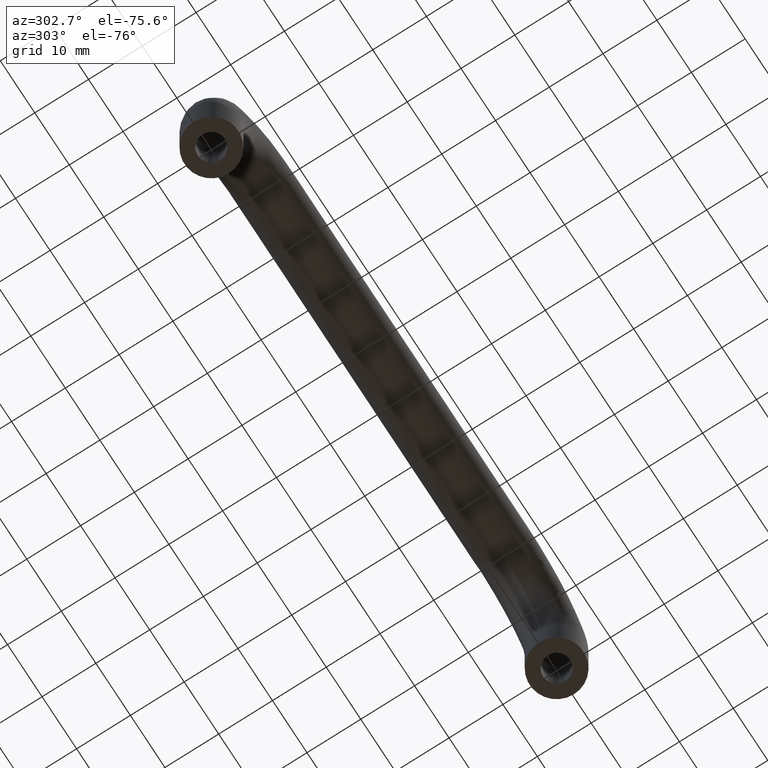
[diagram: clean part render]
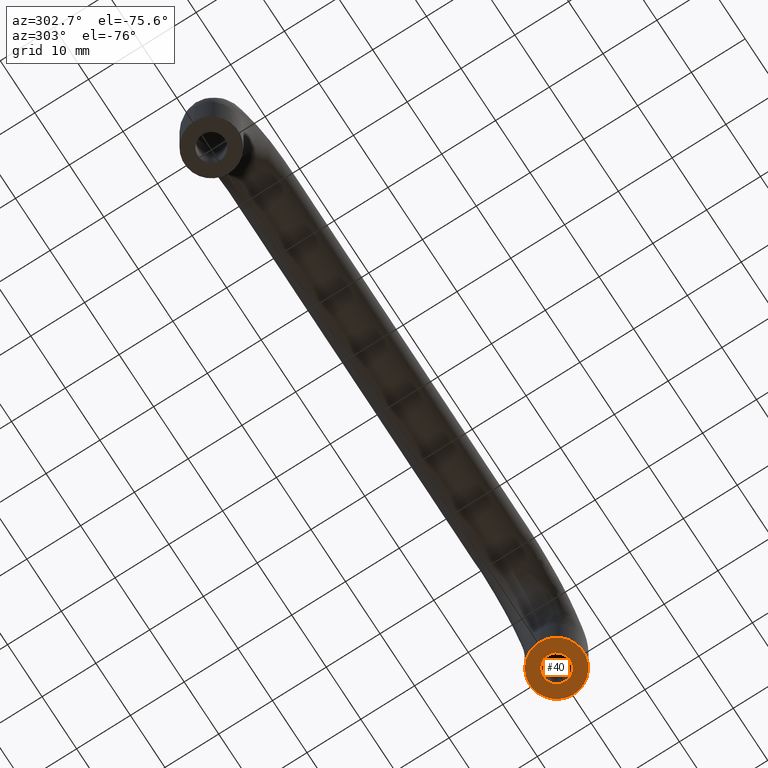
[diagram: same view with one face highlighted and labeled with its STEP entity id]
A machine part, auxiliary view. The second image highlights one B-rep face of the part: STEP entity #40.
In plain terms, the highlighted planar face has unit normal (0, 0, 1).
Its self-contained STEP definition (entity closure, byte-faithful):
#40=ADVANCED_FACE('',(#59,#60),#58,.F.);
#58=PLANE('',#243);
#59=FACE_OUTER_BOUND('',#244,.T.);
#60=FACE_BOUND('',#245,.T.);
#240=CARTESIAN_POINT('',(4.35000000000E+01,-1.03923048455E+01,-2.00000000000E+01));
#241=DIRECTION('',(0.00000000000E+00,0.00000000000E+00,1.00000000000E+00));
#242=DIRECTION('',(1.00000000000E+00,0.00000000000E+00,-0.00000000000E+00));
#243=AXIS2_PLACEMENT_3D('',#240,#241,#242);
#244=EDGE_LOOP('',(#436,#437));
#245=EDGE_LOOP('',(#438,#439));
#436=ORIENTED_EDGE('',*,*,#504,.T.);
#437=ORIENTED_EDGE('',*,*,#505,.T.);
#438=ORIENTED_EDGE('',*,*,#506,.F.);
#439=ORIENTED_EDGE('',*,*,#507,.F.);
#504=EDGE_CURVE('',#538,#539,#540,.T.);
#505=EDGE_CURVE('',#539,#538,#546,.T.);
#506=EDGE_CURVE('',#552,#553,#554,.T.);
#507=EDGE_CURVE('',#553,#552,#560,.T.);
#538=VERTEX_POINT('',#762);
#539=VERTEX_POINT('',#763);
#540=CIRCLE('',#767,5.00000000000E+00);
#546=CIRCLE('',#771,5.00000000000E+00);
#552=VERTEX_POINT('',#772);
#553=VERTEX_POINT('',#773);
#554=CIRCLE('',#777,2.50000000000E+00);
#560=CIRCLE('',#781,2.50000000000E+00);
#762=CARTESIAN_POINT('',(4.50000000000E+01,-9.33374089281E-11,-2.00000000000E+01));
#763=CARTESIAN_POINT('',(5.50000000000E+01,-9.33371898289E-11,-2.00000000000E+01));
#764=CARTESIAN_POINT('',(5.00000000000E+01,-9.33367966249E-11,-2.00000000000E+01));
#765=DIRECTION('',(0.00000000000E+00,0.00000000000E+00,-1.00000000000E+00));
#766=DIRECTION('',(-1.00000000000E+00,-0.00000000000E+00,-0.00000000000E+00));
#767=AXIS2_PLACEMENT_3D('',#764,#765,#766);
#768=CARTESIAN_POINT('',(5.00000000000E+01,-9.33367966249E-11,-2.00000000000E+01));
#769=DIRECTION('',(0.00000000000E+00,0.00000000000E+00,-1.00000000000E+00));
#770=DIRECTION('',(-1.00000000000E+00,-0.00000000000E+00,-0.00000000000E+00));
#771=AXIS2_PLACEMENT_3D('',#768,#769,#770);
#772=CARTESIAN_POINT('',(4.75000000000E+01,5.54510511582E-11,-2.00000000000E+01));
#773=CARTESIAN_POINT('',(5.25000000000E+01,5.54507651908E-11,-2.00000000000E+01));
#774=CARTESIAN_POINT('',(5.00000000000E+01,5.54507550987E-11,-2.00000000000E+01));
#775=DIRECTION('',(0.00000000000E+00,0.00000000000E+00,-1.00000000000E+00));
#776=DIRECTION('',(1.00000000000E+00,-1.18423799998E-16,-0.00000000000E+00));
#777=AXIS2_PLACEMENT_3D('',#774,#775,#776);
#778=CARTESIAN_POINT('',(5.00000000000E+01,5.54507550987E-11,-2.00000000000E+01));
#779=DIRECTION('',(0.00000000000E+00,0.00000000000E+00,-1.00000000000E+00));
#780=DIRECTION('',(1.00000000000E+00,-1.18423799998E-16,-0.00000000000E+00));
#781=AXIS2_PLACEMENT_3D('',#778,#779,#780);